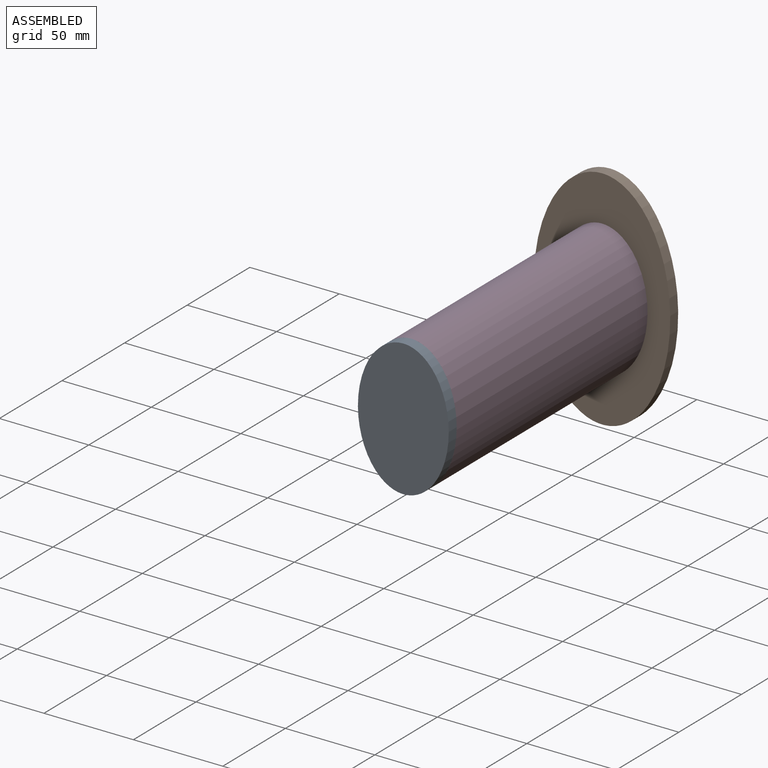
[diagram: assembled view]
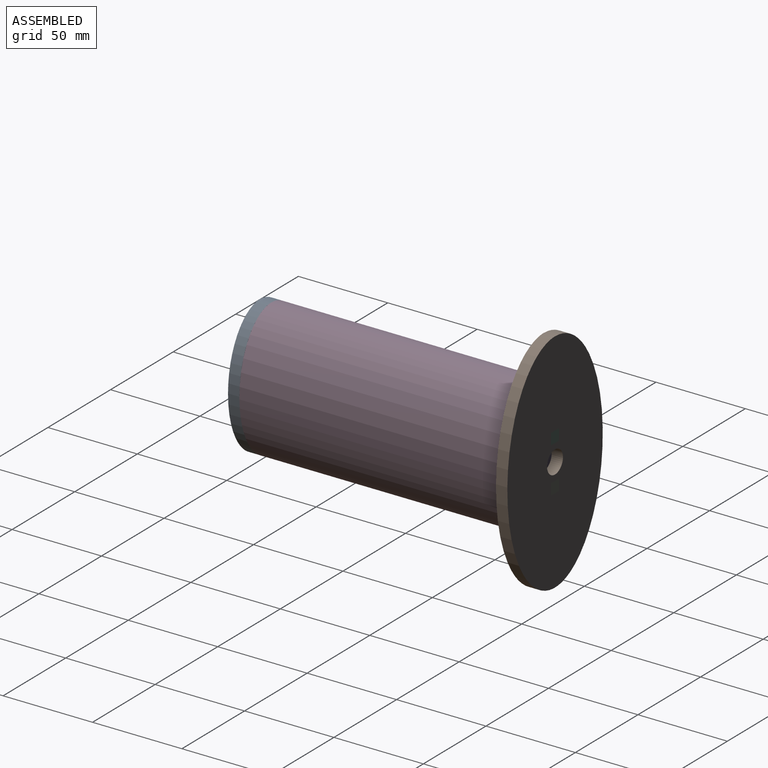
[diagram: assembled view, second angle]
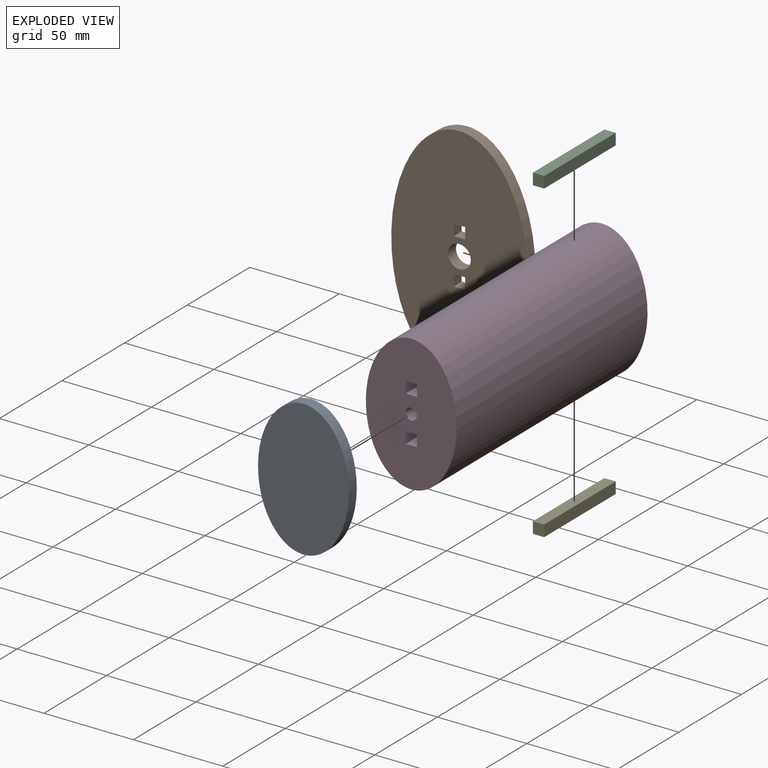
[diagram: exploded view]
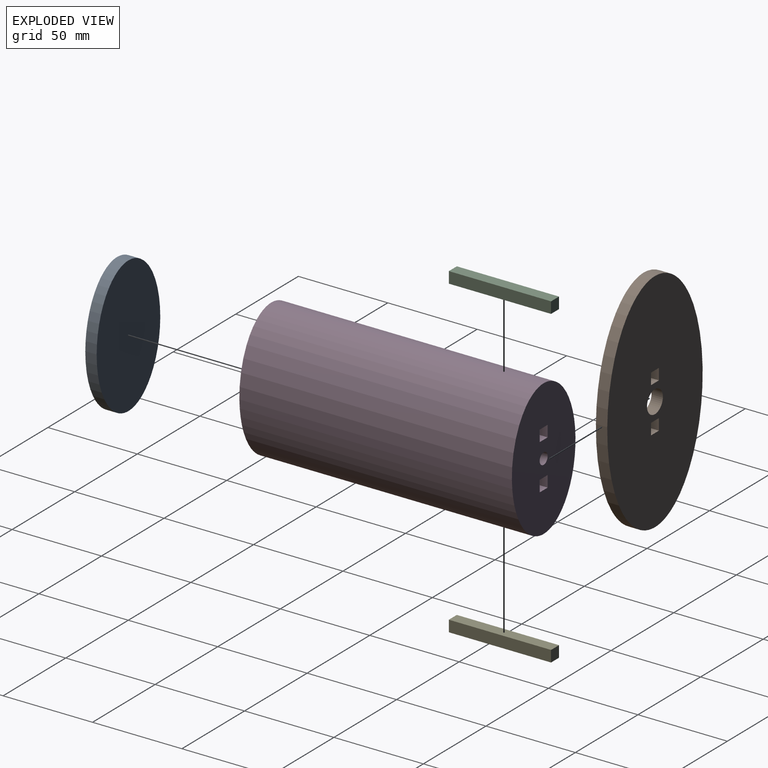
[diagram: exploded view, second angle]
ASSEMBLY  parts=5 mates=5
PART A: 3 faces, bbox 50.8x6.4x76.2 mm
  f0: extruded ~76.2x50.8mm, area 1279.5mm2, adj f1,f2
  f1: plane 76.2x50.8mm, normal (0,-1,0), area 3040.2mm2, adj f0
  f2: plane 76.2x50.8mm, normal (0,1,0), area 3040.2mm2, adj f0
PART B: 12 faces, bbox 76.2x6.4x127 mm
  f0: plane 6.35x6.35mm, normal (0,0,-1), area 40.3mm2, adj f1,f9,f10,f11
  f1: plane 6.35x6.35mm, normal (-1,0,0), area 40.3mm2, adj f0,f2,f10,f11
  f2: plane 6.35x6.35mm, normal (0,0,1), area 40.3mm2, adj f1,f9,f10,f11
  f3: plane 6.35x6.35mm, normal (0,0,-1), area 40.3mm2, adj f4,f6,f10,f11
  f4: plane 6.35x6.35mm, normal (-1,0,0), area 40.3mm2, adj f3,f5,f10,f11
  f5: plane 6.35x6.35mm, normal (0,0,1), area 40.3mm2, adj f4,f6,f10,f11
  f6: plane 6.35x6.35mm, normal (1,0,0), area 40.3mm2, adj f3,f5,f10,f11
  f7: extruded ~127x76.2mm, area 2058.6mm2, adj f10,f11
  f8: cylinder r=6.35mm len=12.7mm, axis (0,1,0), area 253.4mm2, adj f10,f11
  f9: plane 6.35x6.35mm, normal (1,0,0), area 40.3mm2, adj f0,f2,f10,f11
  f10: plane 127x76.2mm, normal (0,-1,0), area 7393.3mm2, adj f0,f1,f2,f3,f4,f5,f6,f7
  f11: plane 127x76.2mm, normal (0,1,0), area 7393.3mm2, adj f0,f1,f2,f3,f4,f5,f6,f7
PART C: 6 faces, bbox 6.4x57.2x6.4 mm
  f0: plane 57.15x6.35mm, normal (-1,0,0), area 362.9mm2, adj f1,f3,f4,f5
  f1: plane 57.15x6.35mm, normal (0,0,1), area 362.9mm2, adj f0,f2,f4,f5
  f2: plane 57.15x6.35mm, normal (1,0,0), area 362.9mm2, adj f1,f3,f4,f5
  f3: plane 57.15x6.35mm, normal (0,0,-1), area 362.9mm2, adj f0,f2,f4,f5
  f4: plane 6.35x6.35mm, normal (0,-1,0), area 40.3mm2, adj f0,f1,f2,f3
  f5: plane 6.35x6.35mm, normal (0,1,0), area 40.3mm2, adj f0,f1,f2,f3
PART D: 12 faces, bbox 50.8x152.4x76.2 mm
  f0: plane 152.4x6.35mm, normal (0,0,-1), area 967.7mm2, adj f1,f9,f10,f11
  f1: plane 152.4x6.35mm, normal (-1,0,0), area 967.7mm2, adj f0,f2,f10,f11
  f2: plane 152.4x6.35mm, normal (0,0,1), area 967.7mm2, adj f1,f9,f10,f11
  f3: plane 152.4x6.35mm, normal (1,0,0), area 967.7mm2, adj f4,f8,f10,f11
  f4: plane 152.4x6.35mm, normal (0,0,-1), area 967.7mm2, adj f3,f5,f10,f11
  f5: plane 152.4x6.35mm, normal (-1,0,0), area 967.7mm2, adj f4,f8,f10,f11
  f6: extruded ~152.4x76.2mm, area 30707.3mm2, adj f10,f11
  f7: cylinder r=3.17mm len=152.4mm, axis (0,1,0), area 3040.2mm2, adj f10,f11
  f8: plane 152.4x6.35mm, normal (0,0,1), area 967.7mm2, adj f3,f5,f10,f11
  f9: plane 152.4x6.35mm, normal (1,0,0), area 967.7mm2, adj f0,f2,f10,f11
  f10: plane 76.2x50.8mm, normal (0,-1,0), area 2927.9mm2, adj f0,f1,f2,f3,f4,f5,f6,f7
  f11: plane 76.2x50.8mm, normal (0,1,0), area 2927.9mm2, adj f0,f1,f2,f3,f4,f5,f6,f7
PART E: 6 faces, bbox 6.4x57.2x6.4 mm
  f0: plane 57.15x6.35mm, normal (0,0,1), area 362.9mm2, adj f1,f3,f4,f5
  f1: plane 57.15x6.35mm, normal (1,0,0), area 362.9mm2, adj f0,f2,f4,f5
  f2: plane 57.15x6.35mm, normal (0,0,-1), area 362.9mm2, adj f1,f3,f4,f5
  f3: plane 57.15x6.35mm, normal (-1,0,0), area 362.9mm2, adj f0,f2,f4,f5
  f4: plane 6.35x6.35mm, normal (0,-1,0), area 40.3mm2, adj f0,f1,f2,f3
  f5: plane 6.35x6.35mm, normal (0,1,0), area 40.3mm2, adj f0,f1,f2,f3
PLACE A t=(-20.83,32.71,6.92)mm fixed
PLACE B t=(-20.83,39.06,6.92)mm
PLACE C t=(-20.83,32.71,6.92)mm
PLACE D t=(-20.83,32.71,6.92)mm
PLACE E t=(-20.83,32.71,6.92)mm
MATE fastened B.f8 <-> D.f7  axis (0,-1,0) through (-20.83,32.71,6.92)mm
MATE fastened C.f5 <-> B.f11  axis (0,1,0) through (-20.83,39.06,19.62)mm
MATE fastened E.f5 <-> B.f11  axis (0,1,0) through (-20.83,39.06,-5.78)mm
MATE fastened D.f7 <-> A.f2  axis (0,-1,0) through (-20.83,-119.69,6.92)mm
MATE fastened D.f7 <-> B.f8  axis (0,1,0) through (-20.83,32.71,6.92)mm
